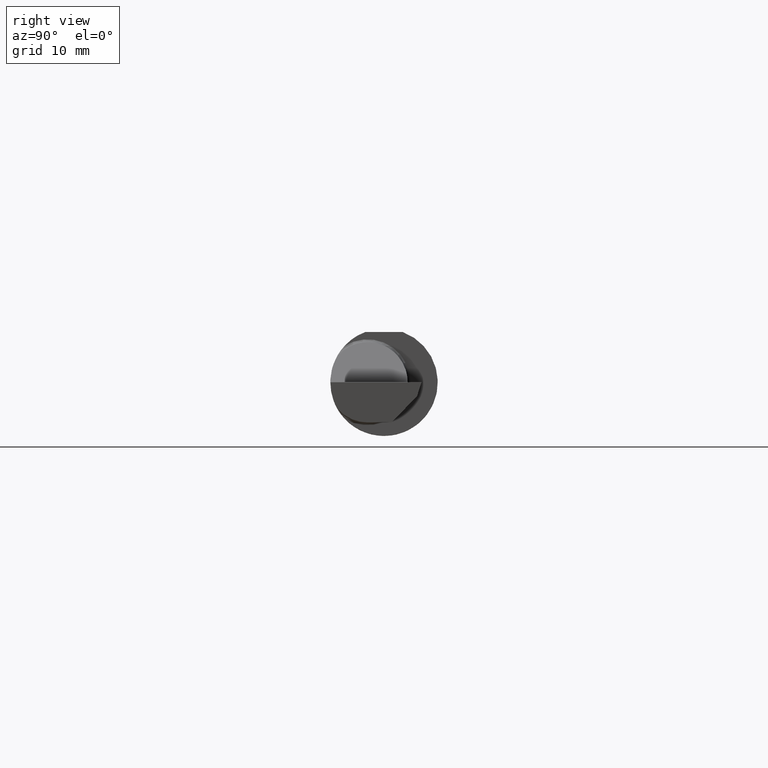
[diagram: clean part render]
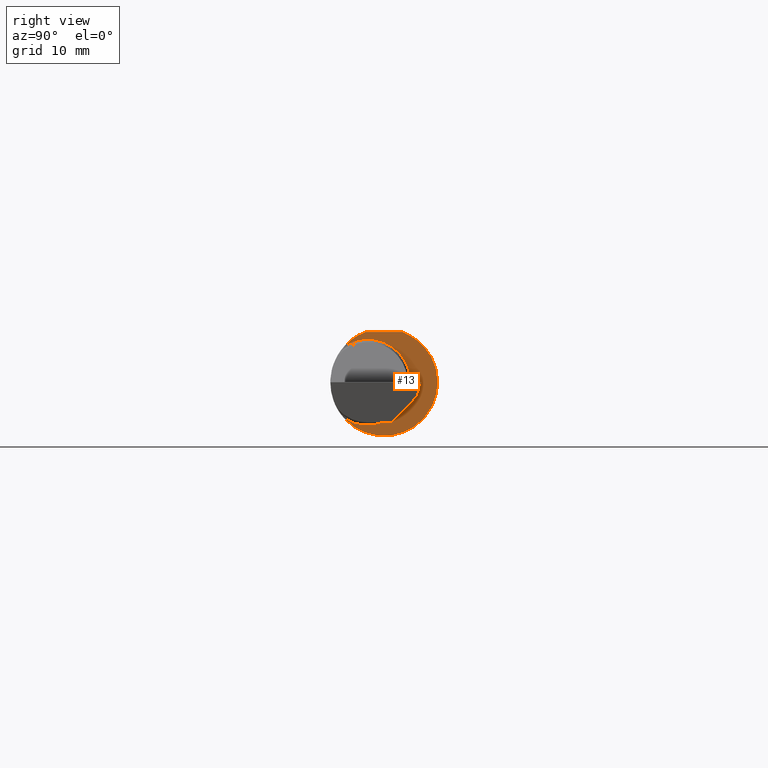
[diagram: same view with one face highlighted and labeled with its STEP entity id]
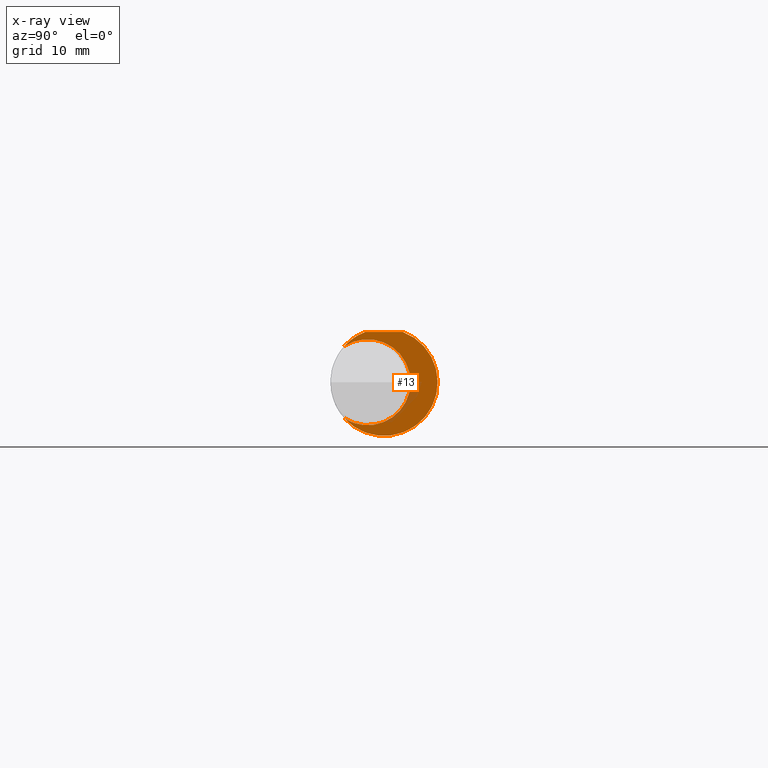
[diagram: x-ray of the same camera — body ghosted, the highlighted face saturated]
A machine part, right view. The second image highlights one B-rep face of the part: STEP entity #13.
The next image is the same camera in x-ray: the body ghosted, the highlighted face saturated — about 8% of this face is hidden behind the body in this view.
In plain terms, the highlighted planar face has unit normal (1, 0, 0).
Its self-contained STEP definition (entity closure, byte-faithful):
#1 = CARTESIAN_POINT ( 'NONE',  ( 1.949999999999999956, 0.09265000000000002400, 0.000000000000000000 ) ) ;
#13 = ADVANCED_FACE ( 'NONE', ( #200 ), #431, .T. ) ;
#17 = DIRECTION ( 'NONE',  ( 0.000000000000000000, 1.000000000000000000, 0.000000000000000000 ) ) ;
#29 = CARTESIAN_POINT ( 'NONE',  ( 1.949999999999999956, -0.06597272163553659363, 0.1753499999999999781 ) ) ;
#30 = ORIENTED_EDGE ( 'NONE', *, *, #500, .T. ) ;
#44 = CIRCLE ( 'NONE', #269, 0.1873499999999999888 ) ;
#64 = DIRECTION ( 'NONE',  ( 1.000000000000000000, 6.829619984160658046E-18, 0.000000000000000000 ) ) ;
#74 = CARTESIAN_POINT ( 'NONE',  ( 1.949999999999999956, 0.06597272163553663527, 0.1753499999999999781 ) ) ;
#86 = DIRECTION ( 'NONE',  ( 0.000000000000000000, 1.000000000000000000, 0.000000000000000000 ) ) ;
#116 = CARTESIAN_POINT ( 'NONE',  ( 1.949999999999999956, 0.2373500000000000332, 0.1753499999999999504 ) ) ;
#200 = FACE_OUTER_BOUND ( 'NONE', #407, .T. ) ;
#204 = EDGE_CURVE ( 'NONE', #220, #287, #404, .T. ) ;
#220 = VERTEX_POINT ( 'NONE', #604 ) ;
#222 = DIRECTION ( 'NONE',  ( 0.000000000000000000, -1.000000000000000000, 0.000000000000000000 ) ) ;
#227 = VERTEX_POINT ( 'NONE', #29 ) ;
#231 = CIRCLE ( 'NONE', #466, 0.1873499999999999888 ) ;
#232 = ORIENTED_EDGE ( 'NONE', *, *, #417, .T. ) ;
#259 = LINE ( 'NONE', #116, #586 ) ;
#269 = AXIS2_PLACEMENT_3D ( 'NONE', #578, #379, #86 ) ;
#287 = VERTEX_POINT ( 'NONE', #332 ) ;
#332 = CARTESIAN_POINT ( 'NONE',  ( 1.949999999999999956, -0.1383256097560974507, -0.1263568288047932642 ) ) ;
#379 = DIRECTION ( 'NONE',  ( 1.000000000000000000, 6.829619984160658046E-18, 0.000000000000000000 ) ) ;
#389 = DIRECTION ( 'NONE',  ( 6.829619984160658046E-18, -1.000000000000000000, 1.438723400918613551E-16 ) ) ;
#393 = CARTESIAN_POINT ( 'NONE',  ( 1.949999999999999956, 0.000000000000000000, 0.000000000000000000 ) ) ;
#404 = CIRCLE ( 'NONE', #623, 0.1500499999999999889 ) ;
#407 = EDGE_LOOP ( 'NONE', ( #232, #30, #536, #463 ) ) ;
#409 = AXIS2_PLACEMENT_3D ( 'NONE', #1, #487, #533 ) ;
#417 = EDGE_CURVE ( 'NONE', #287, #614, #44, .T. ) ;
#431 = PLANE ( 'NONE',  #409 ) ;
#463 = ORIENTED_EDGE ( 'NONE', *, *, #204, .T. ) ;
#466 = AXIS2_PLACEMENT_3D ( 'NONE', #393, #64, #17 ) ;
#487 = DIRECTION ( 'NONE',  ( 1.000000000000000000, 6.829619984160658046E-18, 0.000000000000000000 ) ) ;
#500 = EDGE_CURVE ( 'NONE', #614, #227, #259, .T. ) ;
#533 = DIRECTION ( 'NONE',  ( -6.829619984160658046E-18, 1.000000000000000000, 0.000000000000000000 ) ) ;
#536 = ORIENTED_EDGE ( 'NONE', *, *, #577, .T. ) ;
#541 = CARTESIAN_POINT ( 'NONE',  ( 1.949999999999999956, -0.05739999999999999963, 0.000000000000000000 ) ) ;
#577 = EDGE_CURVE ( 'NONE', #227, #220, #231, .T. ) ;
#578 = CARTESIAN_POINT ( 'NONE',  ( 1.949999999999999956, 0.000000000000000000, 0.000000000000000000 ) ) ;
#586 = VECTOR ( 'NONE', #389, 39.37007874015748143 ) ;
#601 = DIRECTION ( 'NONE',  ( -1.000000000000000000, -6.829619984160658046E-18, -0.000000000000000000 ) ) ;
#604 = CARTESIAN_POINT ( 'NONE',  ( 1.949999999999999956, -0.1383256097560974507, 0.1263568288047932642 ) ) ;
#614 = VERTEX_POINT ( 'NONE', #74 ) ;
#623 = AXIS2_PLACEMENT_3D ( 'NONE', #541, #601, #222 ) ;